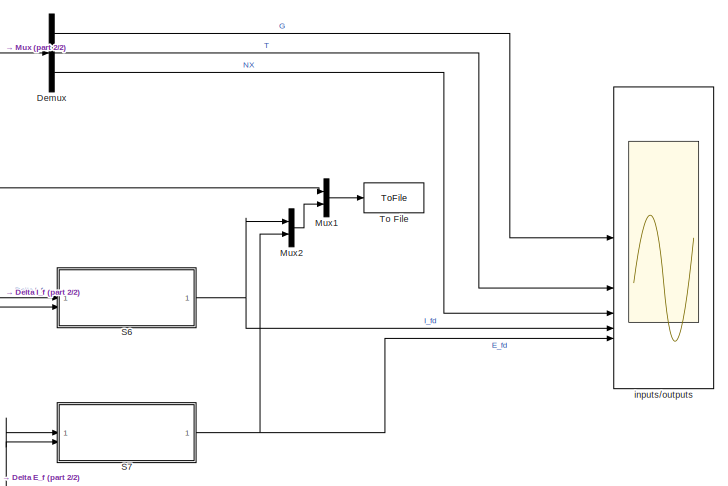
[diagram: root canvas - part 1/2, top right region]
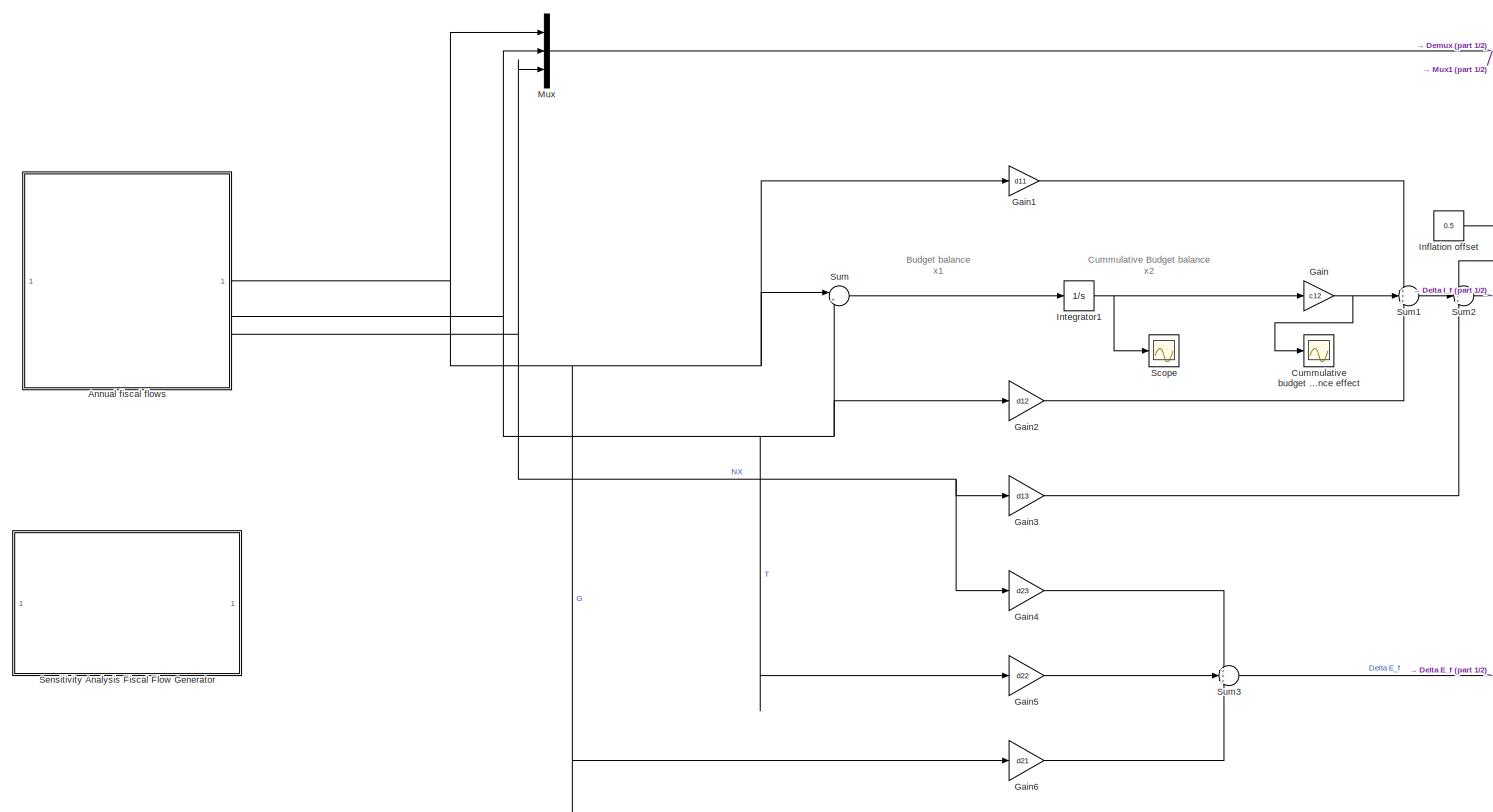
[diagram: root canvas - part 2/2, left side, full height]
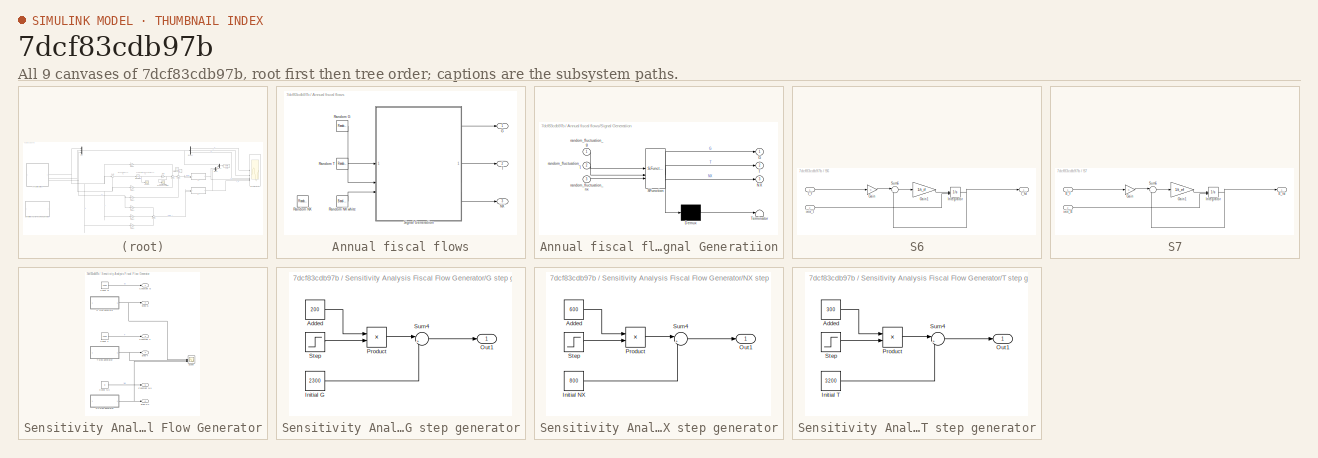
[diagram: thumbnail index - all 9 canvases of the model, root first then tree order]
MODEL slx_7dcf83cdb97b
KIND model
CONFIG AbsTol = auto
CONFIG EnableMultiTasking = off
CONFIG FixedStep = auto
CONFIG MaxStep = auto
CONFIG MinStep = auto
CONFIG RelTol = 1e-3
CONFIG SampleTimeConstraint = Unconstrained
CONFIG SolverName = VariableStepAuto
CONFIG StartTime = 0.0
CONFIG StopTime = 1.04
WORKSPACE source: mxarray member
WORKSPACE init_E = 1
BLOCK [SubSystem] Annual fiscal flows
BLOCK [Outport] Annual fiscal flows/G
BLOCK [Outport] Annual fiscal flows/NX
  Port = 3
BLOCK [RandomNumber] Annual fiscal flows/Random G
  SampleTime = 0.12
  Seed = 123
BLOCK [RandomNumber] Annual fiscal flows/Random NX
  SampleTime = 0.1
  Seed = 125
BLOCK [Reference] Annual fiscal flows/Random NX white  REF=simulink/Sources/Band-Limited
White Noise
  SourceBlock = simulink/Sources/Band-Limited\nWhite Noise
  SourceType = Band-Limited White Noise.
BLOCK [RandomNumber] Annual fiscal flows/Random T
  SampleTime = 0.12
  Seed = 124
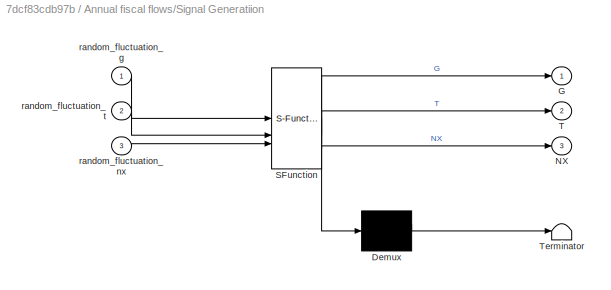
BLOCK [SubSystem] Annual fiscal flows/Signal Generatiion
  ErrorFcn = Stateflow.Translate.translate
  PermitHierarchicalResolution = ExplicitOnly
  SFBlockType = MATLAB Function
  TreatAsAtomicUnit = on
BLOCK [Demux] Annual fiscal flows/Signal Generatiion/ Demux 
  Outputs = 1
BLOCK [S-Function] Annual fiscal flows/Signal Generatiion/ SFunction 
  EnableBusSupport = on
  FunctionName = sf_sfun
  PortCounts = [3 4]
  SFcnIsStateOwnerBlock = off
  SFunctionDeploymentMode = off
  Tag = Stateflow S-Function 2
BLOCK [Terminator] Annual fiscal flows/Signal Generatiion/ Terminator 
BLOCK [Outport] Annual fiscal flows/Signal Generatiion/G
BLOCK [Outport] Annual fiscal flows/Signal Generatiion/NX
  Port = 3
BLOCK [Outport] Annual fiscal flows/Signal Generatiion/T
  Port = 2
BLOCK [Inport] Annual fiscal flows/Signal Generatiion/random_fluctuation_g
BLOCK [Inport] Annual fiscal flows/Signal Generatiion/random_fluctuation_nx
  Port = 3
BLOCK [Inport] Annual fiscal flows/Signal Generatiion/random_fluctuation_t
  Port = 2
BLOCK [Outport] Annual fiscal flows/T
  Port = 2
BLOCK [Scope] Cummulative budget balance effect
  Floating = off
  NumInputPorts = 1
  ScopeSpecificationString = Simulink.scopes.TimeScopeBlockCfg('CurrentConfiguration', extmgr.ConfigurationSet(extmgr.Configuration('Core','General UI',true),extmgr.Configuration('Core','Source UI',true),extmgr.Configuration('Sources','WiredSimulink',true,'DataLoggingVariableName','ScopeData3'),extmgr.Configuration('Visuals','Time Domain',true,'SerializedDisplays',{struct('MinYLimReal','-0.88708','MaxYLimReal','0.09856','YLab...<+1363ch>
BLOCK [Demux] Demux
  Outputs = 3
BLOCK [Gain] Gain
  Gain = c12
BLOCK [Gain] Gain1
  Gain = d11
BLOCK [Gain] Gain2
  Gain = d12
BLOCK [Gain] Gain3
  Gain = d13
BLOCK [Gain] Gain4
  Gain = d23
BLOCK [Gain] Gain5
  Gain = d22
BLOCK [Gain] Gain6
  Gain = d21
BLOCK [Constant] Inflation offset
  Value = 0.5
BLOCK [Integrator] Integrator1
BLOCK [Mux] Mux
  DisplayOption = bar
  Inputs = 3
BLOCK [Mux] Mux1
  DisplayOption = bar
  Inputs = 2
BLOCK [Mux] Mux2
  DisplayOption = bar
  Inputs = 2
BLOCK [SubSystem] S6
BLOCK [Gain] S6/Gain
BLOCK [Gain] S6/Gain1
  Gain = 1/t_if
BLOCK [Inport] S6/I_f
BLOCK [Outport] S6/I_fd
BLOCK [Integrator] S6/Integrator
  InitialConditionSource = external
BLOCK [Sum] S6/Sum6
  Inputs = |+-
BLOCK [Inport] S6/init_I
  Port = 2
BLOCK [SubSystem] S7
BLOCK [Inport] S7/E_f
BLOCK [Outport] S7/E_fd
BLOCK [Gain] S7/Gain
BLOCK [Gain] S7/Gain1
  Gain = 1/t_ef
BLOCK [Integrator] S7/Integrator
  InitialConditionSource = external
BLOCK [Sum] S7/Sum6
  Inputs = |+-
BLOCK [Inport] S7/init_E
  Port = 2
BLOCK [Scope] Scope
  Floating = off
  NumInputPorts = 1
  ScopeSpecificationString = Simulink.scopes.TimeScopeBlockCfg('CurrentConfiguration', extmgr.ConfigurationSet(extmgr.Configuration('Core','General UI',true),extmgr.Configuration('Core','Source UI',true),extmgr.Configuration('Sources','WiredSimulink',true,'DataLoggingVariableName','ScopeData2'),extmgr.Configuration('Visuals','Time Domain',true,'SerializedDisplays',{struct('MinYLimReal','-1108.85033','MaxYLimReal','123.20559',...<+1390ch>
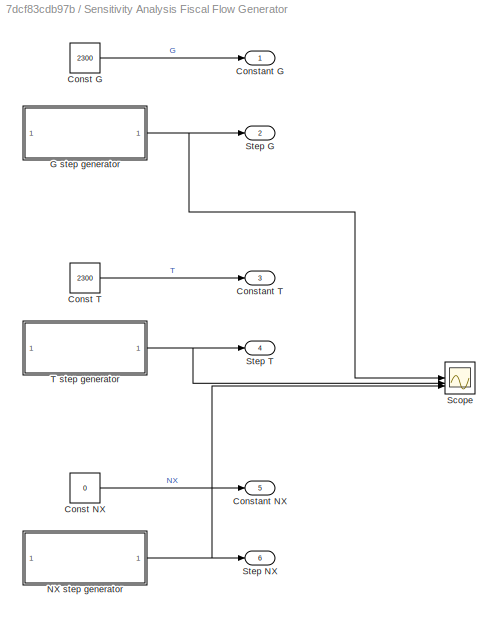
BLOCK [SubSystem] Sensitivity Analysis Fiscal Flow Generator
BLOCK [Constant] Sensitivity Analysis Fiscal Flow Generator/Const G
  Value = 2300
BLOCK [Constant] Sensitivity Analysis Fiscal Flow Generator/Const NX
  Value = 0
BLOCK [Constant] Sensitivity Analysis Fiscal Flow Generator/Const T
  Value = 2300
BLOCK [Outport] Sensitivity Analysis Fiscal Flow Generator/Constant G
BLOCK [Outport] Sensitivity Analysis Fiscal Flow Generator/Constant NX
  Port = 5
BLOCK [Outport] Sensitivity Analysis Fiscal Flow Generator/Constant T
  Port = 3
BLOCK [SubSystem] Sensitivity Analysis Fiscal Flow Generator/G step generator
BLOCK [Constant] Sensitivity Analysis Fiscal Flow Generator/G step generator/Added
  Value = 200
BLOCK [Constant] Sensitivity Analysis Fiscal Flow Generator/G step generator/Initial G
  Value = 2300
BLOCK [Outport] Sensitivity Analysis Fiscal Flow Generator/G step generator/Out1
BLOCK [Product] Sensitivity Analysis Fiscal Flow Generator/G step generator/Product
BLOCK [Step] Sensitivity Analysis Fiscal Flow Generator/G step generator/Step
  SampleTime = 0
  Time = 0.10
BLOCK [Sum] Sensitivity Analysis Fiscal Flow Generator/G step generator/Sum4
  Inputs = |++
BLOCK [SubSystem] Sensitivity Analysis Fiscal Flow Generator/NX step generator
BLOCK [Constant] Sensitivity Analysis Fiscal Flow Generator/NX step generator/Added
  Value = 600
BLOCK [Constant] Sensitivity Analysis Fiscal Flow Generator/NX step generator/Initial NX
  Value = 800
BLOCK [Outport] Sensitivity Analysis Fiscal Flow Generator/NX step generator/Out1
BLOCK [Product] Sensitivity Analysis Fiscal Flow Generator/NX step generator/Product
BLOCK [Step] Sensitivity Analysis Fiscal Flow Generator/NX step generator/Step
  SampleTime = 0
  Time = 0.10
BLOCK [Sum] Sensitivity Analysis Fiscal Flow Generator/NX step generator/Sum4
  Inputs = |++
BLOCK [Scope] Sensitivity Analysis Fiscal Flow Generator/Scope
  Floating = off
  NumInputPorts = 3
  ScopeSpecificationString = Simulink.scopes.TimeScopeBlockCfg('CurrentConfiguration', extmgr.ConfigurationSet(extmgr.Configuration('Core','General UI',true),extmgr.Configuration('Core','Source UI',true),extmgr.Configuration('Sources','WiredSimulink',true,'DataLoggingVariableName','ScopeData3'),extmgr.Configuration('Visuals','Time Domain',true,'SerializedDisplays',{struct('MinYLimReal','2275.00000','MaxYLimReal','2525.00000',...<+2760ch>
BLOCK [Outport] Sensitivity Analysis Fiscal Flow Generator/Step G
  Port = 2
BLOCK [Outport] Sensitivity Analysis Fiscal Flow Generator/Step NX
  Port = 6
BLOCK [Outport] Sensitivity Analysis Fiscal Flow Generator/Step T
  Port = 4
BLOCK [SubSystem] Sensitivity Analysis Fiscal Flow Generator/T step generator
BLOCK [Constant] Sensitivity Analysis Fiscal Flow Generator/T step generator/Added
  Value = 300
BLOCK [Constant] Sensitivity Analysis Fiscal Flow Generator/T step generator/Initial T
  Value = 3200
BLOCK [Outport] Sensitivity Analysis Fiscal Flow Generator/T step generator/Out1
BLOCK [Product] Sensitivity Analysis Fiscal Flow Generator/T step generator/Product
BLOCK [Step] Sensitivity Analysis Fiscal Flow Generator/T step generator/Step
  SampleTime = 0
  Time = 0.10
BLOCK [Sum] Sensitivity Analysis Fiscal Flow Generator/T step generator/Sum4
  Inputs = |++
BLOCK [Sum] Sum
  Inputs = |+-
BLOCK [Sum] Sum1
  Inputs = +++
BLOCK [Sum] Sum2
  Inputs = +++
BLOCK [Sum] Sum3
  Inputs = +++
BLOCK [ToFile] To File
  Filename = fiscal.mat
  MatrixName = fiscalData
BLOCK [Scope] inputs//outputs
  Floating = off
  NumInputPorts = 5
  ScopeSpecificationString = Simulink.scopes.TimeScopeBlockCfg('CurrentConfiguration', extmgr.ConfigurationSet(extmgr.Configuration('Core','General UI',true),extmgr.Configuration('Core','Source UI',true),extmgr.Configuration('Sources','WiredSimulink',true,'DataLoggingVariableName','ScopeData1'),extmgr.Configuration('Visuals','Time Domain',true,'SerializedDisplays',{struct('MinYLimReal','2091.30685','MaxYLimReal','2467.37623',...<+5045ch>
ANNOTATION (root): Cummulative Budget balance x2
ANNOTATION (root): Budget balance x1
LINE Annual fiscal flows/Random G:1 -> Annual fiscal flows/Signal Generatiion:1
LINE Annual fiscal flows/Random NX white:1 -> Annual fiscal flows/Signal Generatiion:3
LINE Annual fiscal flows/Random T:1 -> Annual fiscal flows/Signal Generatiion:2
LINE Annual fiscal flows/Signal Generatiion:1 -> Annual fiscal flows/G:1
LINE Annual fiscal flows/Signal Generatiion:2 -> Annual fiscal flows/T:1
LINE Annual fiscal flows/Signal Generatiion:3 -> Annual fiscal flows/NX:1
NET Annual fiscal flows:1 -> Gain1:1, Gain6:1, Mux:1, Sum:1
NET Annual fiscal flows:2 -> Gain2:1, Gain5:1, Mux:2, Sum:2
NET Annual fiscal flows:3 -> Gain3:1, Gain4:1, Mux:3
LINE Demux:1 -> inputs//outputs:1
LINE Demux:2 -> inputs//outputs:2
LINE Demux:3 -> inputs//outputs:3
LINE Gain1:1 -> Sum1:1
LINE Gain2:1 -> Sum1:3
LINE Gain3:1 -> Sum2:3
LINE Gain4:1 -> Sum3:1
LINE Gain5:1 -> Sum3:2
LINE Gain6:1 -> Sum3:3
NET Gain:1 -> Cummulative budget balance effect:1, Sum1:2
LINE Inflation offset:1 -> Sum2:1
NET Integrator1:1 -> Gain:1, Scope:1
LINE Mux1:1 -> To File:1
LINE Mux2:1 -> Mux1:2
NET Mux:1 -> Demux:1, Mux1:1
LINE S6/Gain1:1 -> S6/Integrator:1
LINE S6/Gain:1 -> S6/Sum6:1
LINE S6/I_f:1 -> S6/Gain:1
NET S6/Integrator:1 -> S6/I_fd:1, S6/Sum6:2
LINE S6/Sum6:1 -> S6/Gain1:1
LINE S6/init_I:1 -> S6/Integrator:2
NET S6:1 -> Mux2:1, inputs//outputs:4
LINE S7/E_f:1 -> S7/Gain:1
LINE S7/Gain1:1 -> S7/Integrator:1
LINE S7/Gain:1 -> S7/Sum6:1
NET S7/Integrator:1 -> S7/E_fd:1, S7/Sum6:2
LINE S7/Sum6:1 -> S7/Gain1:1
LINE S7/init_E:1 -> S7/Integrator:2
NET S7:1 -> Mux2:2, inputs//outputs:5
LINE Sensitivity Analysis Fiscal Flow Generator/Const G:1 -> Sensitivity Analysis Fiscal Flow Generator/Constant G:1
LINE Sensitivity Analysis Fiscal Flow Generator/Const NX:1 -> Sensitivity Analysis Fiscal Flow Generator/Constant NX:1
LINE Sensitivity Analysis Fiscal Flow Generator/Const T:1 -> Sensitivity Analysis Fiscal Flow Generator/Constant T:1
LINE Sensitivity Analysis Fiscal Flow Generator/G step generator/Added:1 -> Sensitivity Analysis Fiscal Flow Generator/G step generator/Product:1
LINE Sensitivity Analysis Fiscal Flow Generator/G step generator/Initial G:1 -> Sensitivity Analysis Fiscal Flow Generator/G step generator/Sum4:2
LINE Sensitivity Analysis Fiscal Flow Generator/G step generator/Product:1 -> Sensitivity Analysis Fiscal Flow Generator/G step generator/Sum4:1
LINE Sensitivity Analysis Fiscal Flow Generator/G step generator/Step:1 -> Sensitivity Analysis Fiscal Flow Generator/G step generator/Product:2
LINE Sensitivity Analysis Fiscal Flow Generator/G step generator/Sum4:1 -> Sensitivity Analysis Fiscal Flow Generator/G step generator/Out1:1
NET Sensitivity Analysis Fiscal Flow Generator/G step generator:1 -> Sensitivity Analysis Fiscal Flow Generator/Scope:1, Sensitivity Analysis Fiscal Flow Generator/Step G:1
LINE Sensitivity Analysis Fiscal Flow Generator/NX step generator/Added:1 -> Sensitivity Analysis Fiscal Flow Generator/NX step generator/Product:1
LINE Sensitivity Analysis Fiscal Flow Generator/NX step generator/Initial NX:1 -> Sensitivity Analysis Fiscal Flow Generator/NX step generator/Sum4:2
LINE Sensitivity Analysis Fiscal Flow Generator/NX step generator/Product:1 -> Sensitivity Analysis Fiscal Flow Generator/NX step generator/Sum4:1
LINE Sensitivity Analysis Fiscal Flow Generator/NX step generator/Step:1 -> Sensitivity Analysis Fiscal Flow Generator/NX step generator/Product:2
LINE Sensitivity Analysis Fiscal Flow Generator/NX step generator/Sum4:1 -> Sensitivity Analysis Fiscal Flow Generator/NX step generator/Out1:1
NET Sensitivity Analysis Fiscal Flow Generator/NX step generator:1 -> Sensitivity Analysis Fiscal Flow Generator/Scope:3, Sensitivity Analysis Fiscal Flow Generator/Step NX:1
LINE Sensitivity Analysis Fiscal Flow Generator/T step generator/Added:1 -> Sensitivity Analysis Fiscal Flow Generator/T step generator/Product:1
LINE Sensitivity Analysis Fiscal Flow Generator/T step generator/Initial T:1 -> Sensitivity Analysis Fiscal Flow Generator/T step generator/Sum4:2
LINE Sensitivity Analysis Fiscal Flow Generator/T step generator/Product:1 -> Sensitivity Analysis Fiscal Flow Generator/T step generator/Sum4:1
LINE Sensitivity Analysis Fiscal Flow Generator/T step generator/Step:1 -> Sensitivity Analysis Fiscal Flow Generator/T step generator/Product:2
LINE Sensitivity Analysis Fiscal Flow Generator/T step generator/Sum4:1 -> Sensitivity Analysis Fiscal Flow Generator/T step generator/Out1:1
NET Sensitivity Analysis Fiscal Flow Generator/T step generator:1 -> Sensitivity Analysis Fiscal Flow Generator/Scope:2, Sensitivity Analysis Fiscal Flow Generator/Step T:1
LINE Sum1:1 -> Sum2:2
NET Sum2:1 -> S6:1, S6:2
NET Sum3:1 -> S7:1, S7:2
LINE Sum:1 -> Integrator1:1
note: NET lines group one-source signal fan-out (src -> all destinations, sorted); 1:1 wires keep LINE
CHART Annual fiscal flows/Signal Generatiion states=1 transitions=1
  STATE_LABEL 'eML_blk_kernel()'
  STATE_LABEL 'SCRIPT:\nfunction [G, T, NX] = AnnualFiscalFlows(random_fluctuation_g, random_fluctuation_t, random_fluctuation_nx)\n    % Constants and initial values (in billion NOK)\n    initial_G = 2300;  % Initial government spending in billion NOK\n    initial_T = 3200;  % Initial taxation income in billion NOK\n    initial_NX = 800;  % Revised average annual net exports in billion NOK\n\n    % Adjusted standard d...<+679ch>'
CHART  states=0 transitions=0
